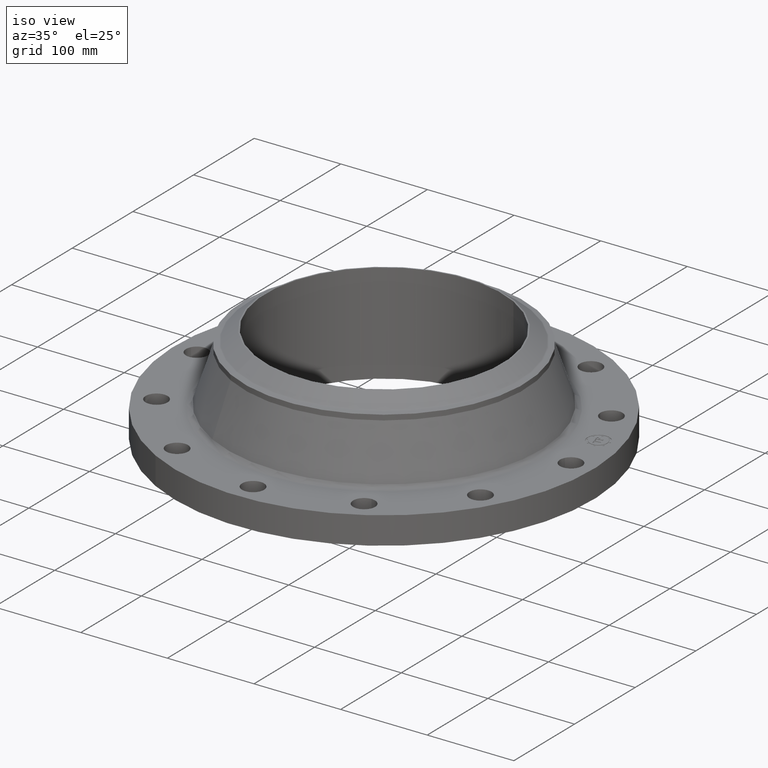
[diagram: clean part render]
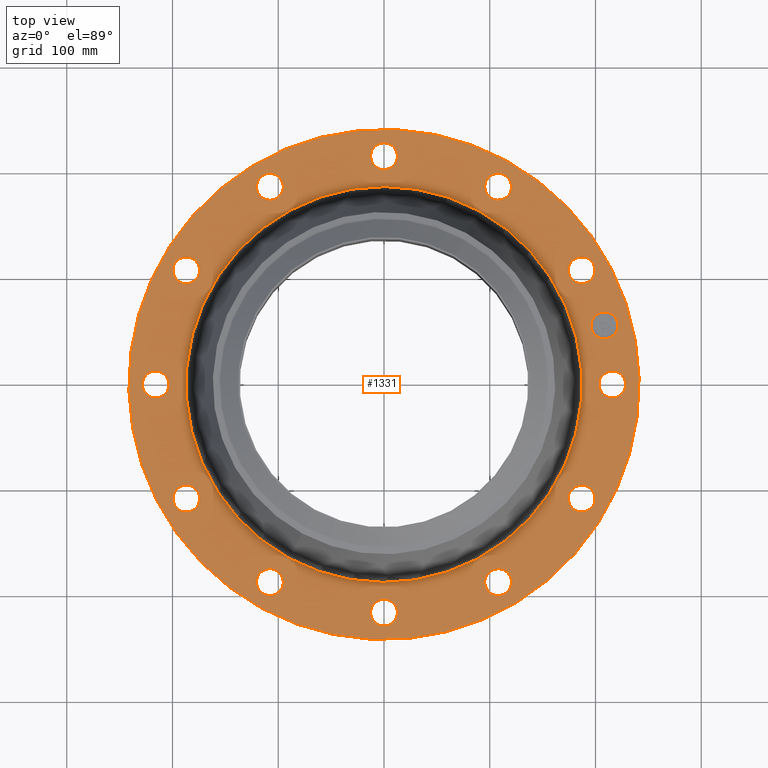
[diagram: tour spotlight — one face highlighted and labeled with its STEP entity id]
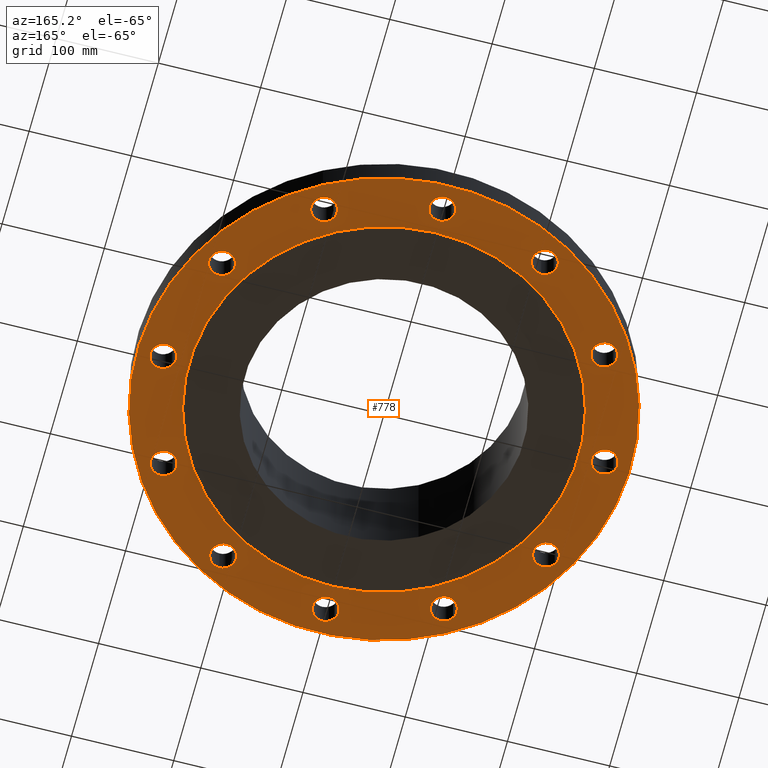
[diagram: tour spotlight — one face highlighted and labeled with its STEP entity id]
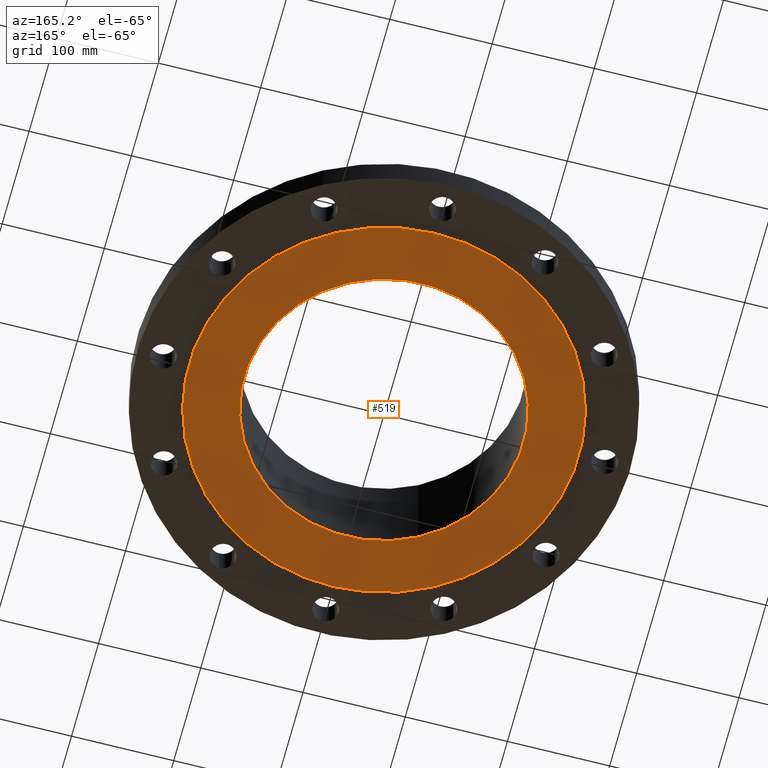
[diagram: tour spotlight — one face highlighted and labeled with its STEP entity id]
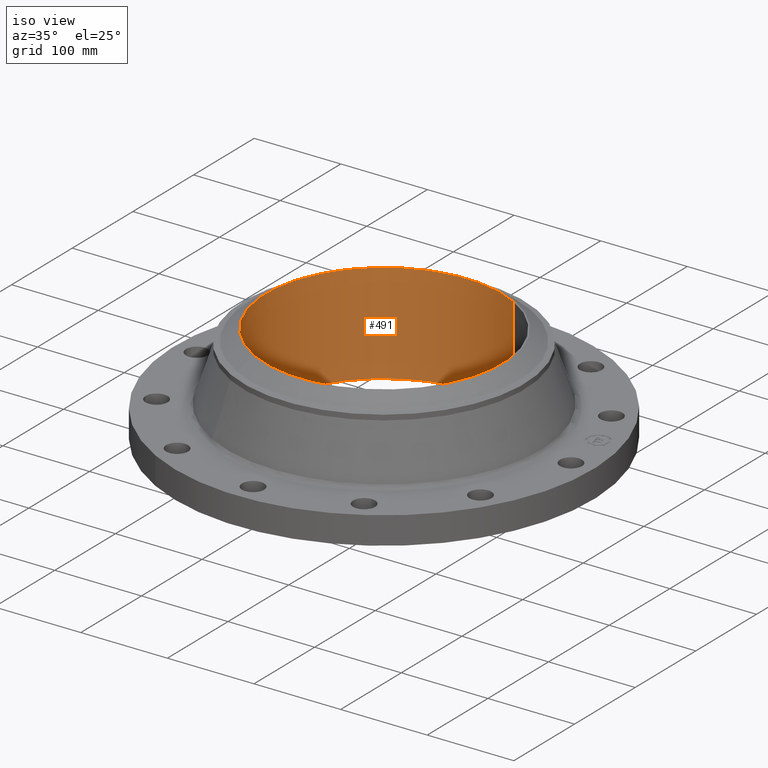
[diagram: tour spotlight — one face highlighted and labeled with its STEP entity id]
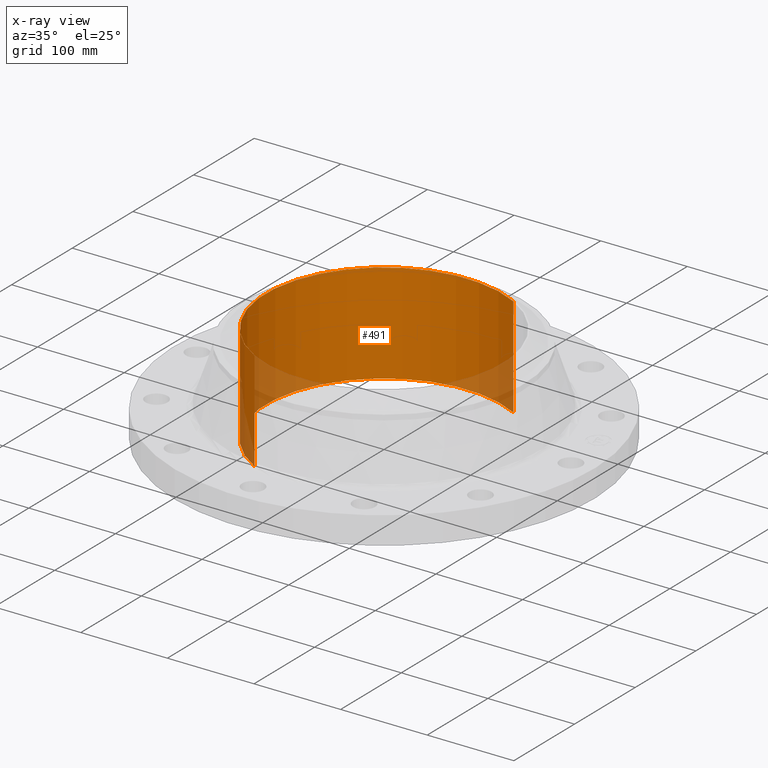
[diagram: x-ray of the same camera — body ghosted, this tour face saturated]
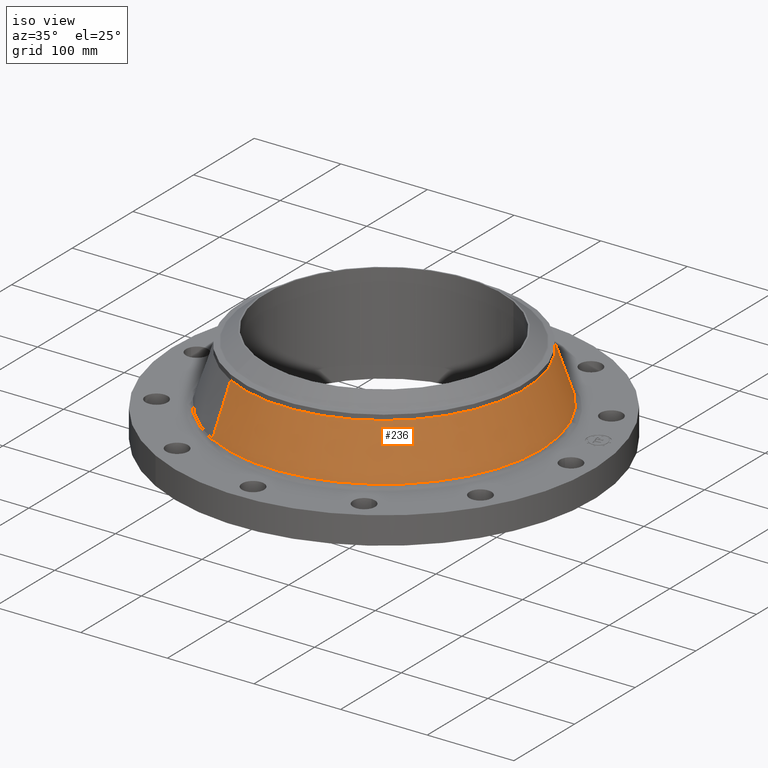
[diagram: tour spotlight — one face highlighted and labeled with its STEP entity id]
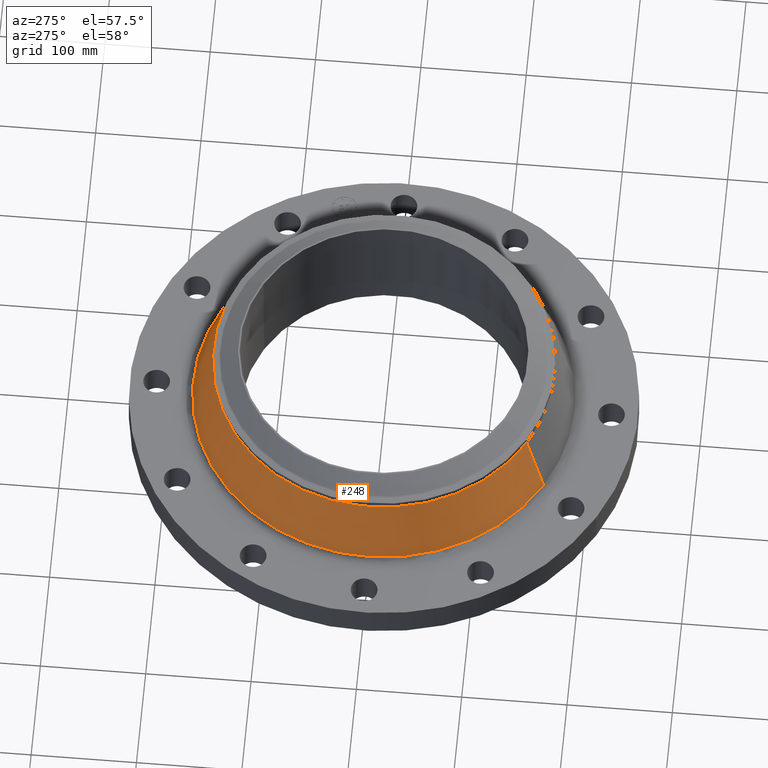
[diagram: tour spotlight — one face highlighted and labeled with its STEP entity id]
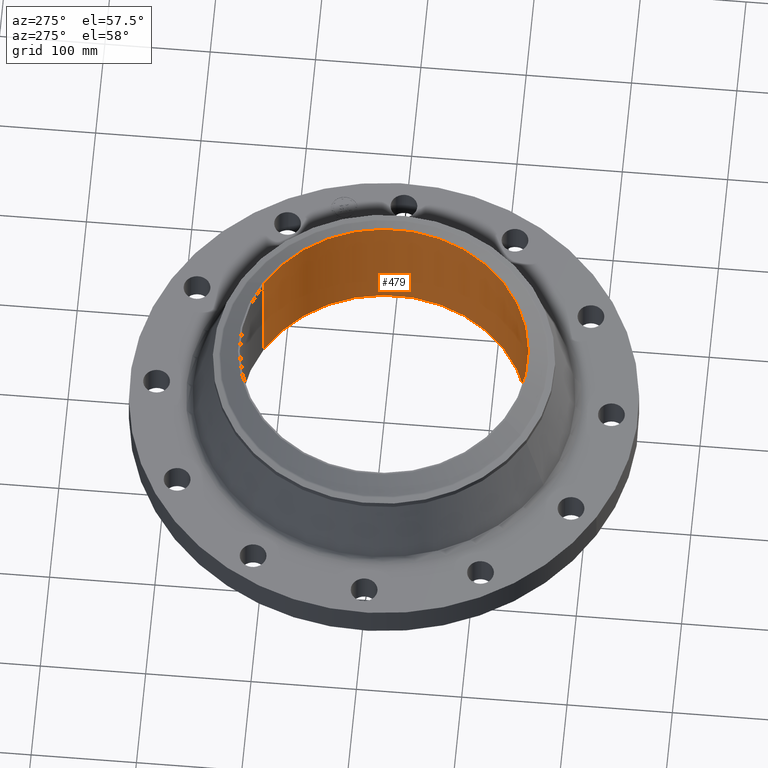
[diagram: tour spotlight — one face highlighted and labeled with its STEP entity id]
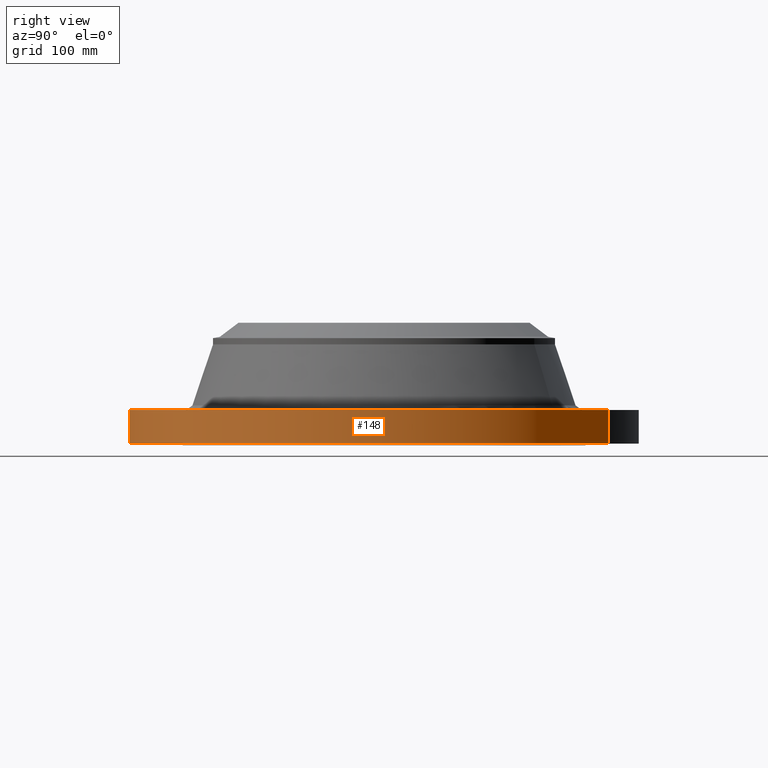
[diagram: tour spotlight — one face highlighted and labeled with its STEP entity id]
A machine part: a face-by-face anatomy tour. The part has 431 B-rep faces; the first image is the clean iso view, then the 8 largest visible faces are spotlighted one at a time (largest first), each with its STEP entity span.

Face 1 — top view, entity #1331. In plain terms, the highlighted planar face has unit normal (0, 0, -1).
Definition (entity closure, byte-faithful):
#65=AXIS2_PLACEMENT_3D('Circle Axis2P3D',#63,#64,$) ;
#82=AXIS2_PLACEMENT_3D('Circle Axis2P3D',#80,#81,$) ;
#115=AXIS2_PLACEMENT_3D('Circle Axis2P3D',#113,#114,$) ;
#139=AXIS2_PLACEMENT_3D('Circle Axis2P3D',#137,#138,$) ;
#156=AXIS2_PLACEMENT_3D('Circle Axis2P3D',#154,#155,$) ;
#191=AXIS2_PLACEMENT_3D('Circle Axis2P3D',#189,#190,$) ;
#800=AXIS2_PLACEMENT_3D('Circle Axis2P3D',#798,#799,$) ;
#812=AXIS2_PLACEMENT_3D('Circle Axis2P3D',#810,#811,$) ;
#843=AXIS2_PLACEMENT_3D('Circle Axis2P3D',#841,#842,$) ;
#855=AXIS2_PLACEMENT_3D('Circle Axis2P3D',#853,#854,$) ;
#886=AXIS2_PLACEMENT_3D('Circle Axis2P3D',#884,#885,$) ;
#898=AXIS2_PLACEMENT_3D('Circle Axis2P3D',#896,#897,$) ;
#929=AXIS2_PLACEMENT_3D('Circle Axis2P3D',#927,#928,$) ;
#941=AXIS2_PLACEMENT_3D('Circle Axis2P3D',#939,#940,$) ;
#972=AXIS2_PLACEMENT_3D('Circle Axis2P3D',#970,#971,$) ;
#984=AXIS2_PLACEMENT_3D('Circle Axis2P3D',#982,#983,$) ;
#1015=AXIS2_PLACEMENT_3D('Circle Axis2P3D',#1013,#1014,$) ;
#1027=AXIS2_PLACEMENT_3D('Circle Axis2P3D',#1025,#1026,$) ;
#1058=AXIS2_PLACEMENT_3D('Circle Axis2P3D',#1056,#1057,$) ;
#1070=AXIS2_PLACEMENT_3D('Circle Axis2P3D',#1068,#1069,$) ;
#1101=AXIS2_PLACEMENT_3D('Circle Axis2P3D',#1099,#1100,$) ;
#1113=AXIS2_PLACEMENT_3D('Circle Axis2P3D',#1111,#1112,$) ;
#1144=AXIS2_PLACEMENT_3D('Circle Axis2P3D',#1142,#1143,$) ;
#1156=AXIS2_PLACEMENT_3D('Circle Axis2P3D',#1154,#1155,$) ;
#1187=AXIS2_PLACEMENT_3D('Circle Axis2P3D',#1185,#1186,$) ;
#1199=AXIS2_PLACEMENT_3D('Circle Axis2P3D',#1197,#1198,$) ;
#1230=AXIS2_PLACEMENT_3D('Circle Axis2P3D',#1228,#1229,$) ;
#1242=AXIS2_PLACEMENT_3D('Circle Axis2P3D',#1240,#1241,$) ;
#1255=AXIS2_PLACEMENT_3D('Plane Axis2P3D',#1252,#1253,#1254) ;
#1315=AXIS2_PLACEMENT_3D('Circle Axis2P3D',#1313,#1314,$) ;
#1324=AXIS2_PLACEMENT_3D('Circle Axis2P3D',#1322,#1323,$) ;
#46=CARTESIAN_POINT('Vertex',(8.06120871909,0.239712769303,1.25000000001)) ;
#60=CARTESIAN_POINT('Vertex',(8.93879128098,-0.239712769303,1.25000000001)) ;
#63=CARTESIAN_POINT('Axis2P3D Location',(8.50000000003,0.,1.25000000001)) ;
#80=CARTESIAN_POINT('Axis2P3D Location',(8.50000000003,0.,1.25000000001)) ;
#110=CARTESIAN_POINT('Vertex',(-4.55454261676,-8.33703433799,1.25000000001)) ;
#113=CARTESIAN_POINT('Axis2P3D Location',(0.,0.,1.25000000001)) ;
#117=CARTESIAN_POINT('Vertex',(4.55454261676,8.33703433799,1.25000000001)) ;
#137=CARTESIAN_POINT('Axis2P3D Location',(0.,0.,1.25000000001)) ;
#154=CARTESIAN_POINT('Axis2P3D Location',(0.,0.,1.25000000001)) ;
#158=CARTESIAN_POINT('Vertex',(3.53342546152,6.4678919229,1.25000000001)) ;
#160=CARTESIAN_POINT('Vertex',(-3.53342546152,-6.4678919229,1.25000000001)) ;
#189=CARTESIAN_POINT('Axis2P3D Location',(0.,0.,1.25000000001)) ;
#788=CARTESIAN_POINT('Vertex',(-7.10106792059,3.82300701172,1.25000000001)) ;
#795=CARTESIAN_POINT('Vertex',(-7.6213639438,4.67699298832,1.25000000001)) ;
#798=CARTESIAN_POINT('Axis2P3D Location',(-7.3612159322,4.25000000002,1.25000000001)) ;
#810=CARTESIAN_POINT('Axis2P3D Location',(-7.3612159322,4.25000000002,1.25000000001)) ;
#831=CARTESIAN_POINT('Vertex',(4.23820170737,-6.86135515129,1.25000000001)) ;
#838=CARTESIAN_POINT('Vertex',(4.26179829266,-7.86107671311,1.25000000001)) ;
#841=CARTESIAN_POINT('Axis2P3D Location',(4.25000000002,-7.3612159322,1.25000000001)) ;
#853=CARTESIAN_POINT('Axis2P3D Location',(4.25000000002,-7.3612159322,1.25000000001)) ;
#874=CARTESIAN_POINT('Vertex',(-4.23820170737,6.86135515129,1.25000000001)) ;
#881=CARTESIAN_POINT('Vertex',(-4.26179829266,7.86107671311,1.25000000001)) ;
#884=CARTESIAN_POINT('Axis2P3D Location',(-4.25000000002,7.3612159322,1.25000000001)) ;
#896=CARTESIAN_POINT('Axis2P3D Location',(-4.25000000002,7.3612159322,1.25000000001)) ;
#917=CARTESIAN_POINT('Vertex',(0.239712769303,-8.06120871909,1.25000000001)) ;
#924=CARTESIAN_POINT('Vertex',(-0.239712769303,-8.93879128098,1.25000000001)) ;
#927=CARTESIAN_POINT('Axis2P3D Location',(-5.98490048565E-016,-8.50000000003,1.25000000001)) ;
#939=CARTESIAN_POINT('Axis2P3D Location',(-5.98490048565E-016,-8.50000000003,1.25000000001)) ;
#960=CARTESIAN_POINT('Vertex',(-0.239712769303,8.06120871909,1.25000000001)) ;
#967=CARTESIAN_POINT('Vertex',(0.239712769303,8.93879128098,1.25000000001)) ;
#970=CARTESIAN_POINT('Axis2P3D Location',(-4.42459730714E-016,8.50000000003,1.25000000001)) ;
#982=CARTESIAN_POINT('Axis2P3D Location',(-4.42459730714E-016,8.50000000003,1.25000000001)) ;
#1003=CARTESIAN_POINT('Vertex',(-3.82300701172,-7.10106792059,1.25000000001)) ;
#1010=CARTESIAN_POINT('Vertex',(-4.67699298832,-7.6213639438,1.25000000001)) ;
#1013=CARTESIAN_POINT('Axis2P3D Location',(-4.25000000002,-7.3612159322,1.25000000001)) ;
#1025=CARTESIAN_POINT('Axis2P3D Location',(-4.25000000002,-7.3612159322,1.25000000001)) ;
#1046=CARTESIAN_POINT('Vertex',(3.82300701172,7.10106792059,1.25000000001)) ;
#1053=CARTESIAN_POINT('Vertex',(4.67699298832,7.6213639438,1.25000000001)) ;
#1056=CARTESIAN_POINT('Axis2P3D Location',(4.25000000002,7.3612159322,1.25000000001)) ;
#1068=CARTESIAN_POINT('Axis2P3D Location',(4.25000000002,7.3612159322,1.25000000001)) ;
#1089=CARTESIAN_POINT('Vertex',(-6.86135515129,-4.23820170737,1.25000000001)) ;
#1096=CARTESIAN_POINT('Vertex',(-7.86107671311,-4.26179829266,1.25000000001)) ;
#1099=CARTESIAN_POINT('Axis2P3D Location',(-7.3612159322,-4.25000000002,1.25000000001)) ;
#1111=CARTESIAN_POINT('Axis2P3D Location',(-7.3612159322,-4.25000000002,1.25000000001)) ;
#1132=CARTESIAN_POINT('Vertex',(6.86135515129,4.23820170737,1.25000000001)) ;
#1139=CARTESIAN_POINT('Vertex',(7.86107671311,4.26179829266,1.25000000001)) ;
#1142=CARTESIAN_POINT('Axis2P3D Location',(7.3612159322,4.25000000002,1.25000000001)) ;
#1154=CARTESIAN_POINT('Axis2P3D Location',(7.3612159322,4.25000000002,1.25000000001)) ;
#1175=CARTESIAN_POINT('Vertex',(-8.06120871909,-0.239712769303,1.25000000001)) ;
#1182=CARTESIAN_POINT('Vertex',(-8.93879128098,0.239712769303,1.25000000001)) ;
#1185=CARTESIAN_POINT('Axis2P3D Location',(-8.50000000003,-1.04094977928E-015,1.25000000001)) ;
#1197=CARTESIAN_POINT('Axis2P3D Location',(-8.50000000003,-1.04094977928E-015,1.25000000001)) ;
#1218=CARTESIAN_POINT('Vertex',(7.10106792059,-3.82300701172,1.25000000001)) ;
#1225=CARTESIAN_POINT('Vertex',(7.6213639438,-4.67699298832,1.25000000001)) ;
#1228=CARTESIAN_POINT('Axis2P3D Location',(7.3612159322,-4.25000000002,1.25000000001)) ;
#1240=CARTESIAN_POINT('Axis2P3D Location',(7.3612159322,-4.25000000002,1.25000000001)) ;
#1252=CARTESIAN_POINT('Axis2P3D Location',(0.,9.50000000004,1.25000000001)) ;
#1313=CARTESIAN_POINT('Axis2P3D Location',(8.21036952349,2.19996188338,1.25000000001)) ;
#1317=CARTESIAN_POINT('Vertex',(8.08096029755,2.68292368957,1.25000000001)) ;
#1319=CARTESIAN_POINT('Vertex',(8.33977874943,1.71700007719,1.25000000001)) ;
#1322=CARTESIAN_POINT('Axis2P3D Location',(8.21036952349,2.19996188338,1.25000000001)) ;
#64=DIRECTION('Axis2P3D Direction',(0.,-0.,-0.0393700787402)) ;
#81=DIRECTION('Axis2P3D Direction',(0.,-0.,-0.0393700787402)) ;
#114=DIRECTION('Axis2P3D Direction',(0.,0.,-0.0393700787402)) ;
#138=DIRECTION('Axis2P3D Direction',(0.,0.,-0.0393700787402)) ;
#155=DIRECTION('Axis2P3D Direction',(0.,0.,-0.0393700787402)) ;
#190=DIRECTION('Axis2P3D Direction',(0.,0.,-0.0393700787402)) ;
#799=DIRECTION('Axis2P3D Direction',(0.,0.,-0.0393700787402)) ;
#811=DIRECTION('Axis2P3D Direction',(0.,0.,-0.0393700787402)) ;
#842=DIRECTION('Axis2P3D Direction',(0.,-0.,-0.0393700787402)) ;
#854=DIRECTION('Axis2P3D Direction',(0.,-0.,-0.0393700787402)) ;
#885=DIRECTION('Axis2P3D Direction',(0.,0.,-0.0393700787402)) ;
#897=DIRECTION('Axis2P3D Direction',(0.,0.,-0.0393700787402)) ;
#928=DIRECTION('Axis2P3D Direction',(0.,-0.,-0.0393700787402)) ;
#940=DIRECTION('Axis2P3D Direction',(0.,-0.,-0.0393700787402)) ;
#971=DIRECTION('Axis2P3D Direction',(0.,0.,-0.0393700787402)) ;
#983=DIRECTION('Axis2P3D Direction',(0.,0.,-0.0393700787402)) ;
#1014=DIRECTION('Axis2P3D Direction',(-0.,0.,-0.0393700787402)) ;
#1026=DIRECTION('Axis2P3D Direction',(-0.,0.,-0.0393700787402)) ;
#1057=DIRECTION('Axis2P3D Direction',(0.,0.,-0.0393700787402)) ;
#1069=DIRECTION('Axis2P3D Direction',(0.,0.,-0.0393700787402)) ;
#1100=DIRECTION('Axis2P3D Direction',(-0.,0.,-0.0393700787402)) ;
#1112=DIRECTION('Axis2P3D Direction',(-0.,0.,-0.0393700787402)) ;
#1143=DIRECTION('Axis2P3D Direction',(0.,0.,-0.0393700787402)) ;
#1155=DIRECTION('Axis2P3D Direction',(0.,0.,-0.0393700787402)) ;
#1186=DIRECTION('Axis2P3D Direction',(-0.,0.,-0.0393700787402)) ;
#1198=DIRECTION('Axis2P3D Direction',(-0.,0.,-0.0393700787402)) ;
#1229=DIRECTION('Axis2P3D Direction',(0.,-0.,-0.0393700787402)) ;
#1241=DIRECTION('Axis2P3D Direction',(0.,-0.,-0.0393700787402)) ;
#1253=DIRECTION('Axis2P3D Direction',(0.,0.,-0.0393700787402)) ;
#1254=DIRECTION('Axis2P3D XDirection',(0.0393700787402,0.,0.)) ;
#1314=DIRECTION('Axis2P3D Direction',(0.,0.,-0.0393700787402)) ;
#1323=DIRECTION('Axis2P3D Direction',(0.,0.,-0.0393700787402)) ;
#1258=ORIENTED_EDGE('',*,*,#141,.F.) ;
#1259=ORIENTED_EDGE('',*,*,#119,.F.) ;
#1262=ORIENTED_EDGE('',*,*,#67,.T.) ;
#1263=ORIENTED_EDGE('',*,*,#84,.T.) ;
#1266=ORIENTED_EDGE('',*,*,#193,.T.) ;
#1267=ORIENTED_EDGE('',*,*,#162,.T.) ;
#1270=ORIENTED_EDGE('',*,*,#1244,.T.) ;
#1271=ORIENTED_EDGE('',*,*,#1232,.T.) ;
#1274=ORIENTED_EDGE('',*,*,#857,.T.) ;
#1275=ORIENTED_EDGE('',*,*,#845,.T.) ;
#1278=ORIENTED_EDGE('',*,*,#943,.T.) ;
#1279=ORIENTED_EDGE('',*,*,#931,.T.) ;
#1282=ORIENTED_EDGE('',*,*,#1029,.T.) ;
#1283=ORIENTED_EDGE('',*,*,#1017,.T.) ;
#1286=ORIENTED_EDGE('',*,*,#1115,.T.) ;
#1287=ORIENTED_EDGE('',*,*,#1103,.T.) ;
#1290=ORIENTED_EDGE('',*,*,#1201,.T.) ;
#1291=ORIENTED_EDGE('',*,*,#1189,.T.) ;
#1294=ORIENTED_EDGE('',*,*,#814,.T.) ;
#1295=ORIENTED_EDGE('',*,*,#802,.T.) ;
#1298=ORIENTED_EDGE('',*,*,#900,.T.) ;
#1299=ORIENTED_EDGE('',*,*,#888,.T.) ;
#1302=ORIENTED_EDGE('',*,*,#986,.T.) ;
#1303=ORIENTED_EDGE('',*,*,#974,.T.) ;
#1306=ORIENTED_EDGE('',*,*,#1072,.T.) ;
#1307=ORIENTED_EDGE('',*,*,#1060,.T.) ;
#1310=ORIENTED_EDGE('',*,*,#1158,.T.) ;
#1311=ORIENTED_EDGE('',*,*,#1146,.T.) ;
#1328=ORIENTED_EDGE('',*,*,#1321,.T.) ;
#1329=ORIENTED_EDGE('',*,*,#1326,.T.) ;
#1264=FACE_BOUND('',#1261,.T.) ;
#1268=FACE_BOUND('',#1265,.T.) ;
#1272=FACE_BOUND('',#1269,.T.) ;
#1276=FACE_BOUND('',#1273,.T.) ;
#1280=FACE_BOUND('',#1277,.T.) ;
#1284=FACE_BOUND('',#1281,.T.) ;
#1288=FACE_BOUND('',#1285,.T.) ;
#1292=FACE_BOUND('',#1289,.T.) ;
#1296=FACE_BOUND('',#1293,.T.) ;
#1300=FACE_BOUND('',#1297,.T.) ;
#1304=FACE_BOUND('',#1301,.T.) ;
#1308=FACE_BOUND('',#1305,.T.) ;
#1312=FACE_BOUND('',#1309,.T.) ;
#1330=FACE_BOUND('',#1327,.T.) ;
#1331=ADVANCED_FACE('PartBody',(#1260,#1264,#1268,#1272,#1276,#1280,#1284,#1288,#1292,#1296,#1300,#1304,#1308,#1312,#1330),#1256,.F.) ;
#66=CIRCLE('generated circle',#65,0.500000000002) ;
#83=CIRCLE('generated circle',#82,0.500000000002) ;
#116=CIRCLE('generated circle',#115,9.50000000004) ;
#140=CIRCLE('generated circle',#139,9.50000000004) ;
#157=CIRCLE('generated circle',#156,7.37012356873) ;
#192=CIRCLE('generated circle',#191,7.37012356873) ;
#801=CIRCLE('generated circle',#800,0.500000000002) ;
#813=CIRCLE('generated circle',#812,0.500000000002) ;
#844=CIRCLE('generated circle',#843,0.500000000002) ;
#856=CIRCLE('generated circle',#855,0.500000000002) ;
#887=CIRCLE('generated circle',#886,0.500000000002) ;
#899=CIRCLE('generated circle',#898,0.500000000002) ;
#930=CIRCLE('generated circle',#929,0.500000000002) ;
#942=CIRCLE('generated circle',#941,0.500000000002) ;
#973=CIRCLE('generated circle',#972,0.500000000002) ;
#985=CIRCLE('generated circle',#984,0.500000000002) ;
#1016=CIRCLE('generated circle',#1015,0.500000000002) ;
#1028=CIRCLE('generated circle',#1027,0.500000000002) ;
#1059=CIRCLE('generated circle',#1058,0.500000000002) ;
#1071=CIRCLE('generated circle',#1070,0.500000000002) ;
#1102=CIRCLE('generated circle',#1101,0.500000000002) ;
#1114=CIRCLE('generated circle',#1113,0.500000000002) ;
#1145=CIRCLE('generated circle',#1144,0.500000000002) ;
#1157=CIRCLE('generated circle',#1156,0.500000000002) ;
#1188=CIRCLE('generated circle',#1187,0.500000000002) ;
#1200=CIRCLE('generated circle',#1199,0.500000000002) ;
#1231=CIRCLE('generated circle',#1230,0.500000000002) ;
#1243=CIRCLE('generated circle',#1242,0.500000000002) ;
#1316=CIRCLE('generated circle',#1315,0.499998853999) ;
#1325=CIRCLE('generated circle',#1324,0.499998853999) ;
#67=EDGE_CURVE('',#47,#61,#66,.T.) ;
#84=EDGE_CURVE('',#61,#47,#83,.T.) ;
#119=EDGE_CURVE('',#111,#118,#116,.T.) ;
#141=EDGE_CURVE('',#118,#111,#140,.T.) ;
#162=EDGE_CURVE('',#159,#161,#157,.T.) ;
#193=EDGE_CURVE('',#161,#159,#192,.T.) ;
#802=EDGE_CURVE('',#789,#796,#801,.T.) ;
#814=EDGE_CURVE('',#796,#789,#813,.T.) ;
#845=EDGE_CURVE('',#832,#839,#844,.T.) ;
#857=EDGE_CURVE('',#839,#832,#856,.T.) ;
#888=EDGE_CURVE('',#875,#882,#887,.T.) ;
#900=EDGE_CURVE('',#882,#875,#899,.T.) ;
#931=EDGE_CURVE('',#918,#925,#930,.T.) ;
#943=EDGE_CURVE('',#925,#918,#942,.T.) ;
#974=EDGE_CURVE('',#961,#968,#973,.T.) ;
#986=EDGE_CURVE('',#968,#961,#985,.T.) ;
#1017=EDGE_CURVE('',#1004,#1011,#1016,.T.) ;
#1029=EDGE_CURVE('',#1011,#1004,#1028,.T.) ;
#1060=EDGE_CURVE('',#1047,#1054,#1059,.T.) ;
#1072=EDGE_CURVE('',#1054,#1047,#1071,.T.) ;
#1103=EDGE_CURVE('',#1090,#1097,#1102,.T.) ;
#1115=EDGE_CURVE('',#1097,#1090,#1114,.T.) ;
#1146=EDGE_CURVE('',#1133,#1140,#1145,.T.) ;
#1158=EDGE_CURVE('',#1140,#1133,#1157,.T.) ;
#1189=EDGE_CURVE('',#1176,#1183,#1188,.T.) ;
#1201=EDGE_CURVE('',#1183,#1176,#1200,.T.) ;
#1232=EDGE_CURVE('',#1219,#1226,#1231,.T.) ;
#1244=EDGE_CURVE('',#1226,#1219,#1243,.T.) ;
#1321=EDGE_CURVE('',#1318,#1320,#1316,.T.) ;
#1326=EDGE_CURVE('',#1320,#1318,#1325,.T.) ;
#1257=EDGE_LOOP('',(#1258,#1259)) ;
#1261=EDGE_LOOP('',(#1262,#1263)) ;
#1265=EDGE_LOOP('',(#1266,#1267)) ;
#1269=EDGE_LOOP('',(#1270,#1271)) ;
#1273=EDGE_LOOP('',(#1274,#1275)) ;
#1277=EDGE_LOOP('',(#1278,#1279)) ;
#1281=EDGE_LOOP('',(#1282,#1283)) ;
#1285=EDGE_LOOP('',(#1286,#1287)) ;
#1289=EDGE_LOOP('',(#1290,#1291)) ;
#1293=EDGE_LOOP('',(#1294,#1295)) ;
#1297=EDGE_LOOP('',(#1298,#1299)) ;
#1301=EDGE_LOOP('',(#1302,#1303)) ;
#1305=EDGE_LOOP('',(#1306,#1307)) ;
#1309=EDGE_LOOP('',(#1310,#1311)) ;
#1327=EDGE_LOOP('',(#1328,#1329)) ;
#1260=FACE_OUTER_BOUND('',#1257,.T.) ;
#1256=PLANE('',#1255) ;
#47=VERTEX_POINT('',#46) ;
#61=VERTEX_POINT('',#60) ;
#111=VERTEX_POINT('',#110) ;
#118=VERTEX_POINT('',#117) ;
#159=VERTEX_POINT('',#158) ;
#161=VERTEX_POINT('',#160) ;
#789=VERTEX_POINT('',#788) ;
#796=VERTEX_POINT('',#795) ;
#832=VERTEX_POINT('',#831) ;
#839=VERTEX_POINT('',#838) ;
#875=VERTEX_POINT('',#874) ;
#882=VERTEX_POINT('',#881) ;
#918=VERTEX_POINT('',#917) ;
#925=VERTEX_POINT('',#924) ;
#961=VERTEX_POINT('',#960) ;
#968=VERTEX_POINT('',#967) ;
#1004=VERTEX_POINT('',#1003) ;
#1011=VERTEX_POINT('',#1010) ;
#1047=VERTEX_POINT('',#1046) ;
#1054=VERTEX_POINT('',#1053) ;
#1090=VERTEX_POINT('',#1089) ;
#1097=VERTEX_POINT('',#1096) ;
#1133=VERTEX_POINT('',#1132) ;
#1140=VERTEX_POINT('',#1139) ;
#1176=VERTEX_POINT('',#1175) ;
#1183=VERTEX_POINT('',#1182) ;
#1219=VERTEX_POINT('',#1218) ;
#1226=VERTEX_POINT('',#1225) ;
#1318=VERTEX_POINT('',#1317) ;
#1320=VERTEX_POINT('',#1319) ;

Face 2 — auxiliary view, entity #778. In plain terms, the highlighted planar face has unit normal (0, 0, -1).
Definition (entity closure, byte-faithful):
#51=AXIS2_PLACEMENT_3D('Circle Axis2P3D',#49,#50,$) ;
#77=AXIS2_PLACEMENT_3D('Circle Axis2P3D',#75,#76,$) ;
#99=AXIS2_PLACEMENT_3D('Circle Axis2P3D',#97,#98,$) ;
#134=AXIS2_PLACEMENT_3D('Circle Axis2P3D',#132,#133,$) ;
#534=AXIS2_PLACEMENT_3D('Circle Axis2P3D',#532,#533,$) ;
#553=AXIS2_PLACEMENT_3D('Circle Axis2P3D',#551,#552,$) ;
#566=AXIS2_PLACEMENT_3D('Plane Axis2P3D',#563,#564,#565) ;
#582=AXIS2_PLACEMENT_3D('Circle Axis2P3D',#580,#581,$) ;
#591=AXIS2_PLACEMENT_3D('Circle Axis2P3D',#589,#590,$) ;
#600=AXIS2_PLACEMENT_3D('Circle Axis2P3D',#598,#599,$) ;
#609=AXIS2_PLACEMENT_3D('Circle Axis2P3D',#607,#608,$) ;
#618=AXIS2_PLACEMENT_3D('Circle Axis2P3D',#616,#617,$) ;
#627=AXIS2_PLACEMENT_3D('Circle Axis2P3D',#625,#626,$) ;
#636=AXIS2_PLACEMENT_3D('Circle Axis2P3D',#634,#635,$) ;
#645=AXIS2_PLACEMENT_3D('Circle Axis2P3D',#643,#644,$) ;
#654=AXIS2_PLACEMENT_3D('Circle Axis2P3D',#652,#653,$) ;
#663=AXIS2_PLACEMENT_3D('Circle Axis2P3D',#661,#662,$) ;
#672=AXIS2_PLACEMENT_3D('Circle Axis2P3D',#670,#671,$) ;
#681=AXIS2_PLACEMENT_3D('Circle Axis2P3D',#679,#680,$) ;
#690=AXIS2_PLACEMENT_3D('Circle Axis2P3D',#688,#689,$) ;
#699=AXIS2_PLACEMENT_3D('Circle Axis2P3D',#697,#698,$) ;
#708=AXIS2_PLACEMENT_3D('Circle Axis2P3D',#706,#707,$) ;
#717=AXIS2_PLACEMENT_3D('Circle Axis2P3D',#715,#716,$) ;
#726=AXIS2_PLACEMENT_3D('Circle Axis2P3D',#724,#725,$) ;
#735=AXIS2_PLACEMENT_3D('Circle Axis2P3D',#733,#734,$) ;
#744=AXIS2_PLACEMENT_3D('Circle Axis2P3D',#742,#743,$) ;
#753=AXIS2_PLACEMENT_3D('Circle Axis2P3D',#751,#752,$) ;
#762=AXIS2_PLACEMENT_3D('Circle Axis2P3D',#760,#761,$) ;
#771=AXIS2_PLACEMENT_3D('Circle Axis2P3D',#769,#770,$) ;
#44=CARTESIAN_POINT('Vertex',(8.06120871909,0.239712769303,0.)) ;
#49=CARTESIAN_POINT('Axis2P3D Location',(8.50000000003,0.,0.)) ;
#53=CARTESIAN_POINT('Vertex',(8.93879128098,-0.239712769303,0.)) ;
#75=CARTESIAN_POINT('Axis2P3D Location',(8.50000000003,0.,0.)) ;
#97=CARTESIAN_POINT('Axis2P3D Location',(0.,0.,5.59482469102E-016)) ;
#101=CARTESIAN_POINT('Vertex',(-4.55454261676,-8.33703433799,5.59482469102E-016)) ;
#103=CARTESIAN_POINT('Vertex',(4.55454261676,8.33703433799,5.59482469102E-016)) ;
#132=CARTESIAN_POINT('Axis2P3D Location',(0.,0.,5.59482469102E-016)) ;
#529=CARTESIAN_POINT('Vertex',(-3.59569153955,-6.5818692142,8.39223703654E-016)) ;
#532=CARTESIAN_POINT('Axis2P3D Location',(0.,0.,8.39223703654E-016)) ;
#536=CARTESIAN_POINT('Vertex',(3.59569153955,6.5818692142,8.39223703654E-016)) ;
#551=CARTESIAN_POINT('Axis2P3D Location',(0.,0.,8.39223703654E-016)) ;
#563=CARTESIAN_POINT('Axis2P3D Location',(0.,7.50000000003,0.)) ;
#580=CARTESIAN_POINT('Axis2P3D Location',(7.3612159322,-4.25000000002,0.)) ;
#584=CARTESIAN_POINT('Vertex',(7.10106792059,-3.82300701172,0.)) ;
#586=CARTESIAN_POINT('Vertex',(7.6213639438,-4.67699298832,0.)) ;
#589=CARTESIAN_POINT('Axis2P3D Location',(7.3612159322,-4.25000000002,0.)) ;
#598=CARTESIAN_POINT('Axis2P3D Location',(4.25000000002,-7.3612159322,0.)) ;
#602=CARTESIAN_POINT('Vertex',(4.23820170737,-6.86135515129,0.)) ;
#604=CARTESIAN_POINT('Vertex',(4.26179829266,-7.86107671311,0.)) ;
#607=CARTESIAN_POINT('Axis2P3D Location',(4.25000000002,-7.3612159322,0.)) ;
#616=CARTESIAN_POINT('Axis2P3D Location',(5.59482469102E-016,-8.50000000003,0.)) ;
#620=CARTESIAN_POINT('Vertex',(0.239712769303,-8.06120871909,0.)) ;
#622=CARTESIAN_POINT('Vertex',(-0.239712769303,-8.93879128098,0.)) ;
#625=CARTESIAN_POINT('Axis2P3D Location',(-4.19611851827E-016,-8.50000000003,0.)) ;
#634=CARTESIAN_POINT('Axis2P3D Location',(-4.25000000002,-7.3612159322,0.)) ;
#638=CARTESIAN_POINT('Vertex',(-3.82300701172,-7.10106792059,0.)) ;
#640=CARTESIAN_POINT('Vertex',(-4.67699298832,-7.6213639438,-1.1189649382E-015)) ;
#643=CARTESIAN_POINT('Axis2P3D Location',(-4.25000000002,-7.3612159322,0.)) ;
#652=CARTESIAN_POINT('Axis2P3D Location',(-7.3612159322,-4.25000000002,0.)) ;
#656=CARTESIAN_POINT('Vertex',(-6.86135515129,-4.23820170737,0.)) ;
#658=CARTESIAN_POINT('Vertex',(-7.86107671311,-4.26179829266,0.)) ;
#661=CARTESIAN_POINT('Axis2P3D Location',(-7.3612159322,-4.25000000002,0.)) ;
#670=CARTESIAN_POINT('Axis2P3D Location',(-8.50000000003,-1.1189649382E-015,0.)) ;
#674=CARTESIAN_POINT('Vertex',(-8.06120871909,-0.239712769303,0.)) ;
#676=CARTESIAN_POINT('Vertex',(-8.93879128098,0.239712769303,0.)) ;
#679=CARTESIAN_POINT('Axis2P3D Location',(-8.50000000003,-1.1189649382E-015,0.)) ;
#688=CARTESIAN_POINT('Axis2P3D Location',(-7.3612159322,4.25000000002,0.)) ;
#692=CARTESIAN_POINT('Vertex',(-7.10106792059,3.82300701172,0.)) ;
#694=CARTESIAN_POINT('Vertex',(-7.6213639438,4.67699298832,0.)) ;
#697=CARTESIAN_POINT('Axis2P3D Location',(-7.3612159322,4.25000000002,0.)) ;
#706=CARTESIAN_POINT('Axis2P3D Location',(-4.25000000002,7.3612159322,0.)) ;
#710=CARTESIAN_POINT('Vertex',(-4.23820170737,6.86135515129,0.)) ;
#712=CARTESIAN_POINT('Vertex',(-4.26179829266,7.86107671311,0.)) ;
#715=CARTESIAN_POINT('Axis2P3D Location',(-4.25000000002,7.3612159322,0.)) ;
#724=CARTESIAN_POINT('Axis2P3D Location',(-4.19611851827E-016,8.50000000003,0.)) ;
#728=CARTESIAN_POINT('Vertex',(-0.239712769303,8.06120871909,0.)) ;
#730=CARTESIAN_POINT('Vertex',(0.239712769303,8.93879128098,0.)) ;
#733=CARTESIAN_POINT('Axis2P3D Location',(2.09805925913E-016,8.50000000003,0.)) ;
#742=CARTESIAN_POINT('Axis2P3D Location',(4.25000000002,7.3612159322,0.)) ;
#746=CARTESIAN_POINT('Vertex',(3.82300701172,7.10106792059,0.)) ;
#748=CARTESIAN_POINT('Vertex',(4.67699298832,7.6213639438,0.)) ;
#751=CARTESIAN_POINT('Axis2P3D Location',(4.25000000002,7.3612159322,0.)) ;
#760=CARTESIAN_POINT('Axis2P3D Location',(7.3612159322,4.25000000002,0.)) ;
#764=CARTESIAN_POINT('Vertex',(6.86135515129,4.23820170737,0.)) ;
#766=CARTESIAN_POINT('Vertex',(7.86107671311,4.26179829266,0.)) ;
#769=CARTESIAN_POINT('Axis2P3D Location',(7.3612159322,4.25000000002,0.)) ;
#50=DIRECTION('Axis2P3D Direction',(0.,-0.,-0.0393700787402)) ;
#76=DIRECTION('Axis2P3D Direction',(0.,-0.,-0.0393700787402)) ;
#98=DIRECTION('Axis2P3D Direction',(0.,0.,-0.0393700787402)) ;
#133=DIRECTION('Axis2P3D Direction',(0.,0.,-0.0393700787402)) ;
#533=DIRECTION('Axis2P3D Direction',(0.,0.,-0.0393700787402)) ;
#552=DIRECTION('Axis2P3D Direction',(0.,0.,-0.0393700787402)) ;
#564=DIRECTION('Axis2P3D Direction',(0.,0.,-0.0393700787402)) ;
#565=DIRECTION('Axis2P3D XDirection',(0.0393700787402,0.,0.)) ;
#581=DIRECTION('Axis2P3D Direction',(0.,0.,-0.0393700787402)) ;
#590=DIRECTION('Axis2P3D Direction',(0.,0.,-0.0393700787402)) ;
#599=DIRECTION('Axis2P3D Direction',(0.,0.,-0.0393700787402)) ;
#608=DIRECTION('Axis2P3D Direction',(0.,0.,-0.0393700787402)) ;
#617=DIRECTION('Axis2P3D Direction',(0.,0.,-0.0393700787402)) ;
#626=DIRECTION('Axis2P3D Direction',(0.,0.,-0.0393700787402)) ;
#635=DIRECTION('Axis2P3D Direction',(0.,0.,-0.0393700787402)) ;
#644=DIRECTION('Axis2P3D Direction',(0.,0.,-0.0393700787402)) ;
#653=DIRECTION('Axis2P3D Direction',(0.,0.,-0.0393700787402)) ;
#662=DIRECTION('Axis2P3D Direction',(0.,0.,-0.0393700787402)) ;
#671=DIRECTION('Axis2P3D Direction',(0.,0.,-0.0393700787402)) ;
#680=DIRECTION('Axis2P3D Direction',(0.,0.,-0.0393700787402)) ;
#689=DIRECTION('Axis2P3D Direction',(0.,0.,-0.0393700787402)) ;
#698=DIRECTION('Axis2P3D Direction',(0.,0.,-0.0393700787402)) ;
#707=DIRECTION('Axis2P3D Direction',(0.,0.,-0.0393700787402)) ;
#716=DIRECTION('Axis2P3D Direction',(0.,0.,-0.0393700787402)) ;
#725=DIRECTION('Axis2P3D Direction',(0.,0.,-0.0393700787402)) ;
#734=DIRECTION('Axis2P3D Direction',(0.,0.,-0.0393700787402)) ;
#743=DIRECTION('Axis2P3D Direction',(0.,0.,-0.0393700787402)) ;
#752=DIRECTION('Axis2P3D Direction',(0.,0.,-0.0393700787402)) ;
#761=DIRECTION('Axis2P3D Direction',(0.,0.,-0.0393700787402)) ;
#770=DIRECTION('Axis2P3D Direction',(0.,0.,-0.0393700787402)) ;
#569=ORIENTED_EDGE('',*,*,#105,.T.) ;
#570=ORIENTED_EDGE('',*,*,#136,.T.) ;
#573=ORIENTED_EDGE('',*,*,#79,.F.) ;
#574=ORIENTED_EDGE('',*,*,#55,.F.) ;
#577=ORIENTED_EDGE('',*,*,#555,.F.) ;
#578=ORIENTED_EDGE('',*,*,#538,.F.) ;
#595=ORIENTED_EDGE('',*,*,#588,.F.) ;
#596=ORIENTED_EDGE('',*,*,#593,.F.) ;
#613=ORIENTED_EDGE('',*,*,#606,.F.) ;
#614=ORIENTED_EDGE('',*,*,#611,.F.) ;
#631=ORIENTED_EDGE('',*,*,#624,.F.) ;
#632=ORIENTED_EDGE('',*,*,#629,.F.) ;
#649=ORIENTED_EDGE('',*,*,#642,.F.) ;
#650=ORIENTED_EDGE('',*,*,#647,.F.) ;
#667=ORIENTED_EDGE('',*,*,#660,.F.) ;
#668=ORIENTED_EDGE('',*,*,#665,.F.) ;
#685=ORIENTED_EDGE('',*,*,#678,.F.) ;
#686=ORIENTED_EDGE('',*,*,#683,.F.) ;
#703=ORIENTED_EDGE('',*,*,#696,.F.) ;
#704=ORIENTED_EDGE('',*,*,#701,.F.) ;
#721=ORIENTED_EDGE('',*,*,#714,.F.) ;
#722=ORIENTED_EDGE('',*,*,#719,.F.) ;
#739=ORIENTED_EDGE('',*,*,#732,.F.) ;
#740=ORIENTED_EDGE('',*,*,#737,.F.) ;
#757=ORIENTED_EDGE('',*,*,#750,.F.) ;
#758=ORIENTED_EDGE('',*,*,#755,.F.) ;
#775=ORIENTED_EDGE('',*,*,#768,.F.) ;
#776=ORIENTED_EDGE('',*,*,#773,.F.) ;
#575=FACE_BOUND('',#572,.T.) ;
#579=FACE_BOUND('',#576,.T.) ;
#597=FACE_BOUND('',#594,.T.) ;
#615=FACE_BOUND('',#612,.T.) ;
#633=FACE_BOUND('',#630,.T.) ;
#651=FACE_BOUND('',#648,.T.) ;
#669=FACE_BOUND('',#666,.T.) ;
#687=FACE_BOUND('',#684,.T.) ;
#705=FACE_BOUND('',#702,.T.) ;
#723=FACE_BOUND('',#720,.T.) ;
#741=FACE_BOUND('',#738,.T.) ;
#759=FACE_BOUND('',#756,.T.) ;
#777=FACE_BOUND('',#774,.T.) ;
#778=ADVANCED_FACE('PartBody',(#571,#575,#579,#597,#615,#633,#651,#669,#687,#705,#723,#741,#759,#777),#567,.T.) ;
#52=CIRCLE('generated circle',#51,0.500000000002) ;
#78=CIRCLE('generated circle',#77,0.500000000002) ;
#100=CIRCLE('generated circle',#99,9.50000000004) ;
#135=CIRCLE('generated circle',#134,9.50000000004) ;
#535=CIRCLE('generated circle',#534,7.50000000003) ;
#554=CIRCLE('generated circle',#553,7.50000000003) ;
#583=CIRCLE('generated circle',#582,0.500000000002) ;
#592=CIRCLE('generated circle',#591,0.500000000002) ;
#601=CIRCLE('generated circle',#600,0.500000000002) ;
#610=CIRCLE('generated circle',#609,0.500000000002) ;
#619=CIRCLE('generated circle',#618,0.500000000002) ;
#628=CIRCLE('generated circle',#627,0.500000000002) ;
#637=CIRCLE('generated circle',#636,0.500000000002) ;
#646=CIRCLE('generated circle',#645,0.500000000002) ;
#655=CIRCLE('generated circle',#654,0.500000000002) ;
#664=CIRCLE('generated circle',#663,0.500000000002) ;
#673=CIRCLE('generated circle',#672,0.500000000002) ;
#682=CIRCLE('generated circle',#681,0.500000000002) ;
#691=CIRCLE('generated circle',#690,0.500000000002) ;
#700=CIRCLE('generated circle',#699,0.500000000002) ;
#709=CIRCLE('generated circle',#708,0.500000000002) ;
#718=CIRCLE('generated circle',#717,0.500000000002) ;
#727=CIRCLE('generated circle',#726,0.500000000002) ;
#736=CIRCLE('generated circle',#735,0.500000000002) ;
#745=CIRCLE('generated circle',#744,0.500000000002) ;
#754=CIRCLE('generated circle',#753,0.500000000002) ;
#763=CIRCLE('generated circle',#762,0.500000000002) ;
#772=CIRCLE('generated circle',#771,0.500000000002) ;
#55=EDGE_CURVE('',#45,#54,#52,.T.) ;
#79=EDGE_CURVE('',#54,#45,#78,.T.) ;
#105=EDGE_CURVE('',#102,#104,#100,.T.) ;
#136=EDGE_CURVE('',#104,#102,#135,.T.) ;
#538=EDGE_CURVE('',#530,#537,#535,.T.) ;
#555=EDGE_CURVE('',#537,#530,#554,.T.) ;
#588=EDGE_CURVE('',#585,#587,#583,.T.) ;
#593=EDGE_CURVE('',#587,#585,#592,.T.) ;
#606=EDGE_CURVE('',#603,#605,#601,.T.) ;
#611=EDGE_CURVE('',#605,#603,#610,.T.) ;
#624=EDGE_CURVE('',#621,#623,#619,.T.) ;
#629=EDGE_CURVE('',#623,#621,#628,.T.) ;
#642=EDGE_CURVE('',#639,#641,#637,.T.) ;
#647=EDGE_CURVE('',#641,#639,#646,.T.) ;
#660=EDGE_CURVE('',#657,#659,#655,.T.) ;
#665=EDGE_CURVE('',#659,#657,#664,.T.) ;
#678=EDGE_CURVE('',#675,#677,#673,.T.) ;
#683=EDGE_CURVE('',#677,#675,#682,.T.) ;
#696=EDGE_CURVE('',#693,#695,#691,.T.) ;
#701=EDGE_CURVE('',#695,#693,#700,.T.) ;
#714=EDGE_CURVE('',#711,#713,#709,.T.) ;
#719=EDGE_CURVE('',#713,#711,#718,.T.) ;
#732=EDGE_CURVE('',#729,#731,#727,.T.) ;
#737=EDGE_CURVE('',#731,#729,#736,.T.) ;
#750=EDGE_CURVE('',#747,#749,#745,.T.) ;
#755=EDGE_CURVE('',#749,#747,#754,.T.) ;
#768=EDGE_CURVE('',#765,#767,#763,.T.) ;
#773=EDGE_CURVE('',#767,#765,#772,.T.) ;
#568=EDGE_LOOP('',(#569,#570)) ;
#572=EDGE_LOOP('',(#573,#574)) ;
#576=EDGE_LOOP('',(#577,#578)) ;
#594=EDGE_LOOP('',(#595,#596)) ;
#612=EDGE_LOOP('',(#613,#614)) ;
#630=EDGE_LOOP('',(#631,#632)) ;
#648=EDGE_LOOP('',(#649,#650)) ;
#666=EDGE_LOOP('',(#667,#668)) ;
#684=EDGE_LOOP('',(#685,#686)) ;
#702=EDGE_LOOP('',(#703,#704)) ;
#720=EDGE_LOOP('',(#721,#722)) ;
#738=EDGE_LOOP('',(#739,#740)) ;
#756=EDGE_LOOP('',(#757,#758)) ;
#774=EDGE_LOOP('',(#775,#776)) ;
#571=FACE_OUTER_BOUND('',#568,.T.) ;
#567=PLANE('',#566) ;
#45=VERTEX_POINT('',#44) ;
#54=VERTEX_POINT('',#53) ;
#102=VERTEX_POINT('',#101) ;
#104=VERTEX_POINT('',#103) ;
#530=VERTEX_POINT('',#529) ;
#537=VERTEX_POINT('',#536) ;
#585=VERTEX_POINT('',#584) ;
#587=VERTEX_POINT('',#586) ;
#603=VERTEX_POINT('',#602) ;
#605=VERTEX_POINT('',#604) ;
#621=VERTEX_POINT('',#620) ;
#623=VERTEX_POINT('',#622) ;
#639=VERTEX_POINT('',#638) ;
#641=VERTEX_POINT('',#640) ;
#657=VERTEX_POINT('',#656) ;
#659=VERTEX_POINT('',#658) ;
#675=VERTEX_POINT('',#674) ;
#677=VERTEX_POINT('',#676) ;
#693=VERTEX_POINT('',#692) ;
#695=VERTEX_POINT('',#694) ;
#711=VERTEX_POINT('',#710) ;
#713=VERTEX_POINT('',#712) ;
#729=VERTEX_POINT('',#728) ;
#731=VERTEX_POINT('',#730) ;
#747=VERTEX_POINT('',#746) ;
#749=VERTEX_POINT('',#748) ;
#765=VERTEX_POINT('',#764) ;
#767=VERTEX_POINT('',#766) ;

Face 3 — auxiliary view, entity #519. In plain terms, the highlighted planar face has unit normal (0, 0, -1).
Definition (entity closure, byte-faithful):
#463=AXIS2_PLACEMENT_3D('Circle Axis2P3D',#461,#462,$) ;
#482=AXIS2_PLACEMENT_3D('Circle Axis2P3D',#480,#481,$) ;
#495=AXIS2_PLACEMENT_3D('Plane Axis2P3D',#492,#493,#494) ;
#499=AXIS2_PLACEMENT_3D('Circle Axis2P3D',#497,#498,$) ;
#508=AXIS2_PLACEMENT_3D('Circle Axis2P3D',#506,#507,$) ;
#458=CARTESIAN_POINT('Vertex',(2.57691227001,4.71700627018,-0.0630000000003)) ;
#461=CARTESIAN_POINT('Axis2P3D Location',(0.,0.,-0.0630000000003)) ;
#465=CARTESIAN_POINT('Vertex',(-2.57691227001,-4.71700627018,-0.0630000000003)) ;
#480=CARTESIAN_POINT('Axis2P3D Location',(0.,0.,-0.0630000000003)) ;
#492=CARTESIAN_POINT('Axis2P3D Location',(0.,5.37500000002,-0.0630000000003)) ;
#497=CARTESIAN_POINT('Axis2P3D Location',(0.,0.,-0.0630000000003)) ;
#501=CARTESIAN_POINT('Vertex',(-3.59569153955,-6.5818692142,-0.0630000000003)) ;
#503=CARTESIAN_POINT('Vertex',(3.59569153955,6.5818692142,-0.0630000000003)) ;
#506=CARTESIAN_POINT('Axis2P3D Location',(0.,0.,-0.0630000000003)) ;
#462=DIRECTION('Axis2P3D Direction',(0.,0.,-0.0393700787402)) ;
#481=DIRECTION('Axis2P3D Direction',(0.,0.,-0.0393700787402)) ;
#493=DIRECTION('Axis2P3D Direction',(0.,0.,-0.0393700787402)) ;
#494=DIRECTION('Axis2P3D XDirection',(0.0393700787402,0.,0.)) ;
#498=DIRECTION('Axis2P3D Direction',(0.,0.,-0.0393700787402)) ;
#507=DIRECTION('Axis2P3D Direction',(0.,0.,-0.0393700787402)) ;
#512=ORIENTED_EDGE('',*,*,#505,.T.) ;
#513=ORIENTED_EDGE('',*,*,#510,.T.) ;
#516=ORIENTED_EDGE('',*,*,#467,.F.) ;
#517=ORIENTED_EDGE('',*,*,#484,.F.) ;
#518=FACE_BOUND('',#515,.T.) ;
#519=ADVANCED_FACE('PartBody',(#514,#518),#496,.T.) ;
#464=CIRCLE('generated circle',#463,5.37500000002) ;
#483=CIRCLE('generated circle',#482,5.37500000002) ;
#500=CIRCLE('generated circle',#499,7.50000000003) ;
#509=CIRCLE('generated circle',#508,7.50000000003) ;
#467=EDGE_CURVE('',#459,#466,#464,.T.) ;
#484=EDGE_CURVE('',#466,#459,#483,.T.) ;
#505=EDGE_CURVE('',#502,#504,#500,.T.) ;
#510=EDGE_CURVE('',#504,#502,#509,.T.) ;
#511=EDGE_LOOP('',(#512,#513)) ;
#515=EDGE_LOOP('',(#516,#517)) ;
#514=FACE_OUTER_BOUND('',#511,.T.) ;
#496=PLANE('',#495) ;
#459=VERTEX_POINT('',#458) ;
#466=VERTEX_POINT('',#465) ;
#502=VERTEX_POINT('',#501) ;
#504=VERTEX_POINT('',#503) ;

Face 4 — iso view, entity #491. An x-ray twin of the same camera follows (body ghosted, this face saturated) — the face is partly hidden behind the body. In plain terms, the highlighted cylindrical surface (partial cylindrical patch) has radius 136.525 mm, axis along (0, 0, -1).
Definition (entity closure, byte-faithful):
#432=AXIS2_PLACEMENT_3D('Circle Axis2P3D',#430,#431,$) ;
#452=AXIS2_PLACEMENT_3D('Cylinder Axis2P3D',#449,#450,#451) ;
#482=AXIS2_PLACEMENT_3D('Circle Axis2P3D',#480,#481,$) ;
#430=CARTESIAN_POINT('Axis2P3D Location',(-5.59482469102E-016,1.39870617276E-016,4.50000000002)) ;
#434=CARTESIAN_POINT('Vertex',(-2.57691227001,-4.71700627018,4.50000000002)) ;
#436=CARTESIAN_POINT('Vertex',(2.57691227001,4.71700627018,4.50000000002)) ;
#449=CARTESIAN_POINT('Axis2P3D Location',(0.,0.,2.26850000001)) ;
#454=CARTESIAN_POINT('Line Origine',(2.57691227001,4.71700627018,2.21850000001)) ;
#458=CARTESIAN_POINT('Vertex',(2.57691227001,4.71700627018,-0.0630000000003)) ;
#465=CARTESIAN_POINT('Vertex',(-2.57691227001,-4.71700627018,-0.0630000000003)) ;
#468=CARTESIAN_POINT('Line Origine',(-2.57691227001,-4.71700627018,2.21850000001)) ;
#480=CARTESIAN_POINT('Axis2P3D Location',(0.,0.,-0.0630000000003)) ;
#431=DIRECTION('Axis2P3D Direction',(0.,-0.,-0.0393700787402)) ;
#450=DIRECTION('Axis2P3D Direction',(0.,0.,-0.0393700787402)) ;
#451=DIRECTION('Axis2P3D XDirection',(-0.0188750212049,-0.0345504945626,0.)) ;
#455=DIRECTION('Vector Direction',(0.,0.,-0.0393700787402)) ;
#469=DIRECTION('Vector Direction',(0.,0.,-0.0393700787402)) ;
#481=DIRECTION('Axis2P3D Direction',(0.,0.,-0.0393700787402)) ;
#456=VECTOR('Line Direction',#455,0.0393700787402) ;
#470=VECTOR('Line Direction',#469,0.0393700787402) ;
#486=ORIENTED_EDGE('',*,*,#472,.T.) ;
#487=ORIENTED_EDGE('',*,*,#484,.T.) ;
#488=ORIENTED_EDGE('',*,*,#460,.F.) ;
#489=ORIENTED_EDGE('',*,*,#438,.F.) ;
#491=ADVANCED_FACE('PartBody',(#490),#453,.F.) ;
#433=CIRCLE('generated circle',#432,5.37500000002) ;
#483=CIRCLE('generated circle',#482,5.37500000002) ;
#453=CYLINDRICAL_SURFACE('generated cylinder',#452,5.37500000002) ;
#438=EDGE_CURVE('',#435,#437,#433,.T.) ;
#460=EDGE_CURVE('',#437,#459,#457,.T.) ;
#472=EDGE_CURVE('',#435,#466,#471,.T.) ;
#484=EDGE_CURVE('',#466,#459,#483,.T.) ;
#485=EDGE_LOOP('',(#486,#487,#488,#489)) ;
#490=FACE_OUTER_BOUND('',#485,.T.) ;
#457=LINE('Line',#454,#456) ;
#471=LINE('Line',#468,#470) ;
#435=VERTEX_POINT('',#434) ;
#437=VERTEX_POINT('',#436) ;
#459=VERTEX_POINT('',#458) ;
#466=VERTEX_POINT('',#465) ;

Face 5 — iso view, entity #236. In plain terms, the highlighted conical surface has half-angle 18.455 deg.
Definition (entity closure, byte-faithful):
#172=AXIS2_PLACEMENT_3D('Circle Axis2P3D',#170,#171,$) ;
#209=AXIS2_PLACEMENT_3D('Cone Axis2P3D',#206,#207,#208) ;
#220=AXIS2_PLACEMENT_3D('Circle Axis2P3D',#218,#219,$) ;
#167=CARTESIAN_POINT('Vertex',(3.41973293728,6.25977915323,1.42086034474)) ;
#170=CARTESIAN_POINT('Axis2P3D Location',(0.,0.,1.42086034474)) ;
#174=CARTESIAN_POINT('Vertex',(-3.41973293728,-6.25977915323,1.42086034474)) ;
#206=CARTESIAN_POINT('Axis2P3D Location',(0.,0.,3.69216047816)) ;
#211=CARTESIAN_POINT('Line Origine',(3.23803537295,5.92718399265,2.55651041145)) ;
#215=CARTESIAN_POINT('Vertex',(3.05633780861,5.59458883207,3.69216047816)) ;
#218=CARTESIAN_POINT('Axis2P3D Location',(0.,0.,3.69216047816)) ;
#222=CARTESIAN_POINT('Vertex',(-3.05633780861,-5.59458883207,3.69216047816)) ;
#225=CARTESIAN_POINT('Line Origine',(-3.23803537295,-5.92718399265,2.55651041145)) ;
#171=DIRECTION('Axis2P3D Direction',(0.,0.,-0.0393700787402)) ;
#207=DIRECTION('Axis2P3D Direction',(0.,0.,-0.0393700787402)) ;
#208=DIRECTION('Axis2P3D XDirection',(-0.0188750212049,-0.0345504945626,0.)) ;
#212=DIRECTION('Vector Direction',(0.00597505068513,0.0109372569157,-0.0373453916899)) ;
#219=DIRECTION('Axis2P3D Direction',(0.,0.,-0.0393700787402)) ;
#226=DIRECTION('Vector Direction',(-0.00597505068513,-0.0109372569157,-0.0373453916899)) ;
#213=VECTOR('Line Direction',#212,0.0393700787402) ;
#227=VECTOR('Line Direction',#226,0.0393700787402) ;
#231=ORIENTED_EDGE('',*,*,#176,.F.) ;
#232=ORIENTED_EDGE('',*,*,#217,.T.) ;
#233=ORIENTED_EDGE('',*,*,#224,.T.) ;
#234=ORIENTED_EDGE('',*,*,#229,.F.) ;
#236=ADVANCED_FACE('PartBody',(#235),#210,.T.) ;
#173=CIRCLE('generated circle',#172,7.1329803315) ;
#221=CIRCLE('generated circle',#220,6.37500000003) ;
#210=CONICAL_SURFACE('Cone',#209,6.37500000003,0.322099326516) ;
#176=EDGE_CURVE('',#168,#175,#173,.T.) ;
#217=EDGE_CURVE('',#168,#216,#214,.F.) ;
#224=EDGE_CURVE('',#216,#223,#221,.T.) ;
#229=EDGE_CURVE('',#175,#223,#228,.F.) ;
#230=EDGE_LOOP('',(#231,#232,#233,#234)) ;
#235=FACE_OUTER_BOUND('',#230,.T.) ;
#214=LINE('Line',#211,#213) ;
#228=LINE('Line',#225,#227) ;
#168=VERTEX_POINT('',#167) ;
#175=VERTEX_POINT('',#174) ;
#216=VERTEX_POINT('',#215) ;
#223=VERTEX_POINT('',#222) ;

Face 6 — auxiliary view, entity #248. In plain terms, the highlighted conical surface has half-angle 18.455 deg.
Definition (entity closure, byte-faithful):
#196=AXIS2_PLACEMENT_3D('Circle Axis2P3D',#194,#195,$) ;
#209=AXIS2_PLACEMENT_3D('Cone Axis2P3D',#206,#207,#208) ;
#239=AXIS2_PLACEMENT_3D('Circle Axis2P3D',#237,#238,$) ;
#167=CARTESIAN_POINT('Vertex',(3.41973293728,6.25977915323,1.42086034474)) ;
#174=CARTESIAN_POINT('Vertex',(-3.41973293728,-6.25977915323,1.42086034474)) ;
#194=CARTESIAN_POINT('Axis2P3D Location',(0.,0.,1.42086034474)) ;
#206=CARTESIAN_POINT('Axis2P3D Location',(0.,0.,3.69216047816)) ;
#211=CARTESIAN_POINT('Line Origine',(3.23803537295,5.92718399265,2.55651041145)) ;
#215=CARTESIAN_POINT('Vertex',(3.05633780861,5.59458883207,3.69216047816)) ;
#222=CARTESIAN_POINT('Vertex',(-3.05633780861,-5.59458883207,3.69216047816)) ;
#225=CARTESIAN_POINT('Line Origine',(-3.23803537295,-5.92718399265,2.55651041145)) ;
#237=CARTESIAN_POINT('Axis2P3D Location',(0.,0.,3.69216047816)) ;
#195=DIRECTION('Axis2P3D Direction',(0.,0.,-0.0393700787402)) ;
#207=DIRECTION('Axis2P3D Direction',(0.,0.,-0.0393700787402)) ;
#208=DIRECTION('Axis2P3D XDirection',(-0.0188750212049,-0.0345504945626,0.)) ;
#212=DIRECTION('Vector Direction',(0.00597505068513,0.0109372569157,-0.0373453916899)) ;
#226=DIRECTION('Vector Direction',(-0.00597505068513,-0.0109372569157,-0.0373453916899)) ;
#238=DIRECTION('Axis2P3D Direction',(0.,0.,-0.0393700787402)) ;
#213=VECTOR('Line Direction',#212,0.0393700787402) ;
#227=VECTOR('Line Direction',#226,0.0393700787402) ;
#243=ORIENTED_EDGE('',*,*,#198,.F.) ;
#244=ORIENTED_EDGE('',*,*,#229,.T.) ;
#245=ORIENTED_EDGE('',*,*,#241,.T.) ;
#246=ORIENTED_EDGE('',*,*,#217,.F.) ;
#248=ADVANCED_FACE('PartBody',(#247),#210,.T.) ;
#197=CIRCLE('generated circle',#196,7.1329803315) ;
#240=CIRCLE('generated circle',#239,6.37500000003) ;
#210=CONICAL_SURFACE('Cone',#209,6.37500000003,0.322099326516) ;
#198=EDGE_CURVE('',#175,#168,#197,.T.) ;
#217=EDGE_CURVE('',#168,#216,#214,.F.) ;
#229=EDGE_CURVE('',#175,#223,#228,.F.) ;
#241=EDGE_CURVE('',#223,#216,#240,.T.) ;
#242=EDGE_LOOP('',(#243,#244,#245,#246)) ;
#247=FACE_OUTER_BOUND('',#242,.T.) ;
#214=LINE('Line',#211,#213) ;
#228=LINE('Line',#225,#227) ;
#168=VERTEX_POINT('',#167) ;
#175=VERTEX_POINT('',#174) ;
#216=VERTEX_POINT('',#215) ;
#223=VERTEX_POINT('',#222) ;

Face 7 — auxiliary view, entity #479. In plain terms, the highlighted cylindrical surface (partial cylindrical patch) has radius 136.525 mm, axis along (0, 0, -1).
Definition (entity closure, byte-faithful):
#441=AXIS2_PLACEMENT_3D('Circle Axis2P3D',#439,#440,$) ;
#452=AXIS2_PLACEMENT_3D('Cylinder Axis2P3D',#449,#450,#451) ;
#463=AXIS2_PLACEMENT_3D('Circle Axis2P3D',#461,#462,$) ;
#434=CARTESIAN_POINT('Vertex',(-2.57691227001,-4.71700627018,4.50000000002)) ;
#436=CARTESIAN_POINT('Vertex',(2.57691227001,4.71700627018,4.50000000002)) ;
#439=CARTESIAN_POINT('Axis2P3D Location',(1.1189649382E-015,-4.19611851827E-016,4.50000000002)) ;
#449=CARTESIAN_POINT('Axis2P3D Location',(0.,0.,2.26850000001)) ;
#454=CARTESIAN_POINT('Line Origine',(2.57691227001,4.71700627018,2.21850000001)) ;
#458=CARTESIAN_POINT('Vertex',(2.57691227001,4.71700627018,-0.0630000000003)) ;
#461=CARTESIAN_POINT('Axis2P3D Location',(0.,0.,-0.0630000000003)) ;
#465=CARTESIAN_POINT('Vertex',(-2.57691227001,-4.71700627018,-0.0630000000003)) ;
#468=CARTESIAN_POINT('Line Origine',(-2.57691227001,-4.71700627018,2.21850000001)) ;
#440=DIRECTION('Axis2P3D Direction',(0.,-0.,-0.0393700787402)) ;
#450=DIRECTION('Axis2P3D Direction',(0.,0.,-0.0393700787402)) ;
#451=DIRECTION('Axis2P3D XDirection',(-0.0188750212049,-0.0345504945626,0.)) ;
#455=DIRECTION('Vector Direction',(0.,0.,-0.0393700787402)) ;
#462=DIRECTION('Axis2P3D Direction',(0.,0.,-0.0393700787402)) ;
#469=DIRECTION('Vector Direction',(0.,0.,-0.0393700787402)) ;
#456=VECTOR('Line Direction',#455,0.0393700787402) ;
#470=VECTOR('Line Direction',#469,0.0393700787402) ;
#474=ORIENTED_EDGE('',*,*,#460,.T.) ;
#475=ORIENTED_EDGE('',*,*,#467,.T.) ;
#476=ORIENTED_EDGE('',*,*,#472,.F.) ;
#477=ORIENTED_EDGE('',*,*,#443,.F.) ;
#479=ADVANCED_FACE('PartBody',(#478),#453,.F.) ;
#442=CIRCLE('generated circle',#441,5.37500000002) ;
#464=CIRCLE('generated circle',#463,5.37500000002) ;
#453=CYLINDRICAL_SURFACE('generated cylinder',#452,5.37500000002) ;
#443=EDGE_CURVE('',#437,#435,#442,.T.) ;
#460=EDGE_CURVE('',#437,#459,#457,.T.) ;
#467=EDGE_CURVE('',#459,#466,#464,.T.) ;
#472=EDGE_CURVE('',#435,#466,#471,.T.) ;
#473=EDGE_LOOP('',(#474,#475,#476,#477)) ;
#478=FACE_OUTER_BOUND('',#473,.T.) ;
#457=LINE('Line',#454,#456) ;
#471=LINE('Line',#468,#470) ;
#435=VERTEX_POINT('',#434) ;
#437=VERTEX_POINT('',#436) ;
#459=VERTEX_POINT('',#458) ;
#466=VERTEX_POINT('',#465) ;

Face 8 — right view, entity #148. In plain terms, the highlighted cylindrical surface (partial cylindrical patch) has radius 241.3 mm, axis along (0, 0, -1).
Definition (entity closure, byte-faithful):
#95=AXIS2_PLACEMENT_3D('Cylinder Axis2P3D',#92,#93,#94) ;
#134=AXIS2_PLACEMENT_3D('Circle Axis2P3D',#132,#133,$) ;
#139=AXIS2_PLACEMENT_3D('Circle Axis2P3D',#137,#138,$) ;
#92=CARTESIAN_POINT('Axis2P3D Location',(0.,0.,2.26850000001)) ;
#101=CARTESIAN_POINT('Vertex',(-4.55454261676,-8.33703433799,5.59482469102E-016)) ;
#103=CARTESIAN_POINT('Vertex',(4.55454261676,8.33703433799,5.59482469102E-016)) ;
#106=CARTESIAN_POINT('Line Origine',(-4.55454261676,-8.33703433799,0.625000000003)) ;
#110=CARTESIAN_POINT('Vertex',(-4.55454261676,-8.33703433799,1.25000000001)) ;
#117=CARTESIAN_POINT('Vertex',(4.55454261676,8.33703433799,1.25000000001)) ;
#120=CARTESIAN_POINT('Line Origine',(4.55454261676,8.33703433799,0.625000000003)) ;
#132=CARTESIAN_POINT('Axis2P3D Location',(0.,0.,5.59482469102E-016)) ;
#137=CARTESIAN_POINT('Axis2P3D Location',(0.,0.,1.25000000001)) ;
#93=DIRECTION('Axis2P3D Direction',(0.,0.,-0.0393700787402)) ;
#94=DIRECTION('Axis2P3D XDirection',(0.0188750212049,0.0345504945626,0.)) ;
#107=DIRECTION('Vector Direction',(0.,0.,-0.0393700787402)) ;
#121=DIRECTION('Vector Direction',(0.,0.,-0.0393700787402)) ;
#133=DIRECTION('Axis2P3D Direction',(0.,0.,-0.0393700787402)) ;
#138=DIRECTION('Axis2P3D Direction',(0.,0.,-0.0393700787402)) ;
#108=VECTOR('Line Direction',#107,0.0393700787402) ;
#122=VECTOR('Line Direction',#121,0.0393700787402) ;
#143=ORIENTED_EDGE('',*,*,#136,.F.) ;
#144=ORIENTED_EDGE('',*,*,#124,.T.) ;
#145=ORIENTED_EDGE('',*,*,#141,.T.) ;
#146=ORIENTED_EDGE('',*,*,#112,.F.) ;
#148=ADVANCED_FACE('PartBody',(#147),#96,.T.) ;
#135=CIRCLE('generated circle',#134,9.50000000004) ;
#140=CIRCLE('generated circle',#139,9.50000000004) ;
#96=CYLINDRICAL_SURFACE('generated cylinder',#95,9.50000000004) ;
#112=EDGE_CURVE('',#102,#111,#109,.F.) ;
#124=EDGE_CURVE('',#104,#118,#123,.F.) ;
#136=EDGE_CURVE('',#104,#102,#135,.T.) ;
#141=EDGE_CURVE('',#118,#111,#140,.T.) ;
#142=EDGE_LOOP('',(#143,#144,#145,#146)) ;
#147=FACE_OUTER_BOUND('',#142,.T.) ;
#109=LINE('Line',#106,#108) ;
#123=LINE('Line',#120,#122) ;
#102=VERTEX_POINT('',#101) ;
#104=VERTEX_POINT('',#103) ;
#111=VERTEX_POINT('',#110) ;
#118=VERTEX_POINT('',#117) ;